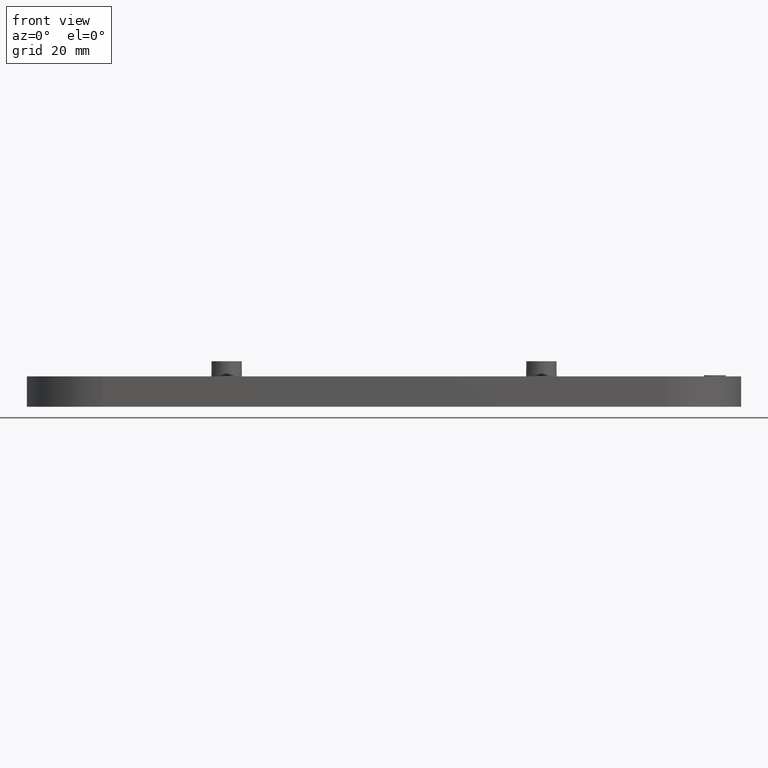
[diagram: clean part render]
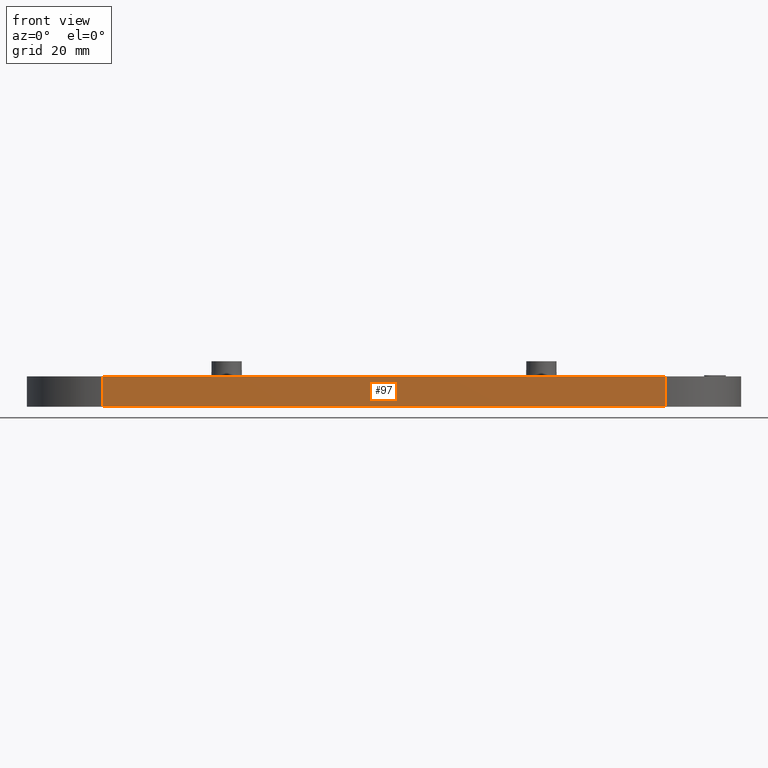
[diagram: same view with one face highlighted and labeled with its STEP entity id]
A machine part, front view. The second image highlights one B-rep face of the part: STEP entity #97.
In plain terms, the highlighted planar face has unit normal (0, 1, -0).
Its self-contained STEP definition (entity closure, byte-faithful):
#97 = ADVANCED_FACE( '', ( #599 ), #600, .F. );
#599 = FACE_OUTER_BOUND( '', #1491, .T. );
#600 = PLANE( '', #1492 );
#1491 = EDGE_LOOP( '', ( #2778, #2779, #2780, #2781 ) );
#1492 = AXIS2_PLACEMENT_3D( '', #2782, #2783, #2784 );
#2778 = ORIENTED_EDGE( '', *, *, #5586, .T. );
#2779 = ORIENTED_EDGE( '', *, *, #5972, .F. );
#2780 = ORIENTED_EDGE( '', *, *, #5794, .F. );
#2781 = ORIENTED_EDGE( '', *, *, #5612, .T. );
#2782 = CARTESIAN_POINT( '', ( 46.5000000000000, -12.5000000000000, 7.65378971138986E-016 ) );
#2783 = DIRECTION( '', ( 0.000000000000000, 1.00000000000000, -6.12303176911189E-017 ) );
#2784 = DIRECTION( '', ( 1.00000000000000, 0.000000000000000, 0.000000000000000 ) );
#5586 = EDGE_CURVE( '', #6631, #6639, #6641, .T. );
#5612 = EDGE_CURVE( '', #6692, #6631, #6693, .T. );
#5794 = EDGE_CURVE( '', #6692, #7046, #7047, .T. );
#5972 = EDGE_CURVE( '', #7046, #6639, #7397, .T. );
#6631 = VERTEX_POINT( '', #8368 );
#6639 = VERTEX_POINT( '', #8377 );
#6641 = LINE( '', #8379, #8380 );
#6692 = VERTEX_POINT( '', #8448 );
#6693 = LINE( '', #8449, #8450 );
#7046 = VERTEX_POINT( '', #8950 );
#7047 = LINE( '', #8951, #8952 );
#7397 = LINE( '', #9464, #9465 );
#8368 = CARTESIAN_POINT( '', ( 46.5000000000000, -12.5000000000000, 5.00000000000000 ) );
#8377 = CARTESIAN_POINT( '', ( -46.5000000000000, -12.5000000000000, 5.00000000000000 ) );
#8379 = CARTESIAN_POINT( '', ( 46.5000000000000, -12.5000000000000, 5.00000000000000 ) );
#8380 = VECTOR( '', #11034, 1000.00000000000 );
#8448 = CARTESIAN_POINT( '', ( 46.5000000000000, -12.5000000000000, 7.65378971138986E-016 ) );
#8449 = CARTESIAN_POINT( '', ( 46.5000000000000, -12.5000000000000, 7.65378971138986E-016 ) );
#8450 = VECTOR( '', #11076, 1000.00000000000 );
#8950 = CARTESIAN_POINT( '', ( -46.5000000000000, -12.5000000000000, 7.65378971138986E-016 ) );
#8951 = CARTESIAN_POINT( '', ( 46.5000000000000, -12.5000000000000, 7.65378971138986E-016 ) );
#8952 = VECTOR( '', #11326, 1000.00000000000 );
#9464 = CARTESIAN_POINT( '', ( -46.5000000000000, -12.5000000000000, 7.65378971138986E-016 ) );
#9465 = VECTOR( '', #11534, 1000.00000000000 );
#11034 = DIRECTION( '', ( -1.00000000000000, 0.000000000000000, 0.000000000000000 ) );
#11076 = DIRECTION( '', ( 0.000000000000000, 6.12303176911189E-017, 1.00000000000000 ) );
#11326 = DIRECTION( '', ( -1.00000000000000, 0.000000000000000, 0.000000000000000 ) );
#11534 = DIRECTION( '', ( 0.000000000000000, 6.12303176911189E-017, 1.00000000000000 ) );